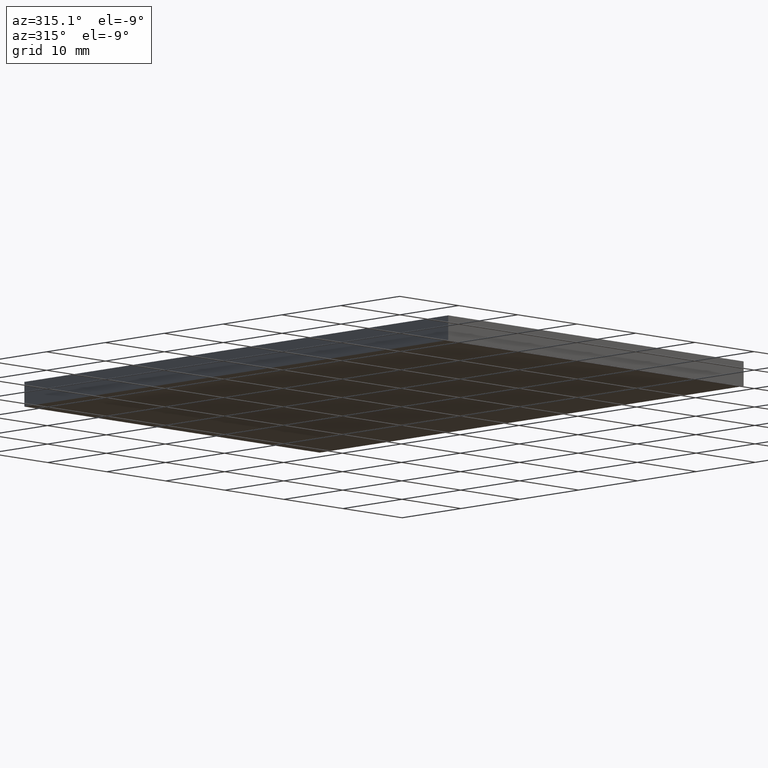
[diagram: clean part render]
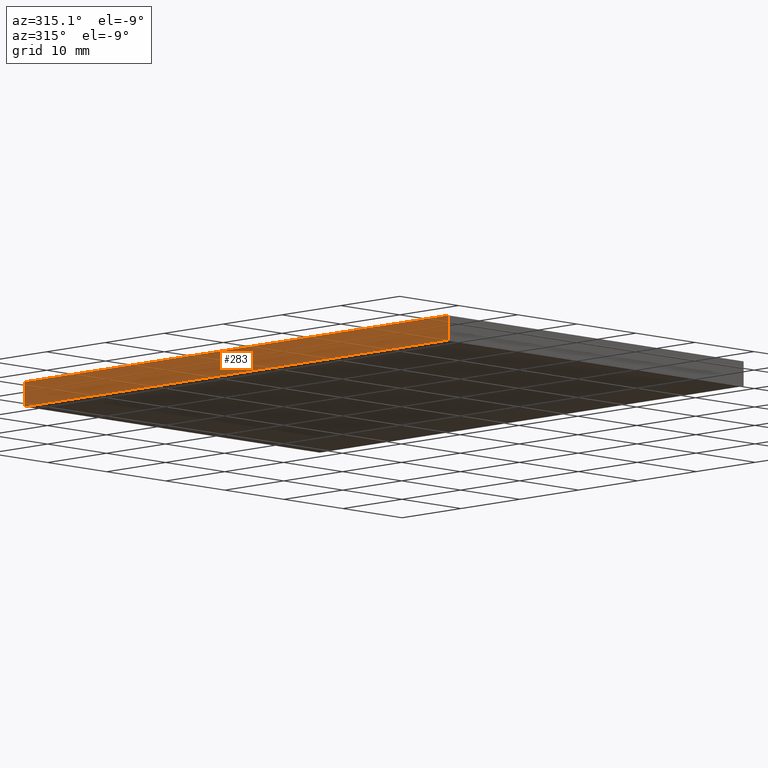
[diagram: same view with one face highlighted and labeled with its STEP entity id]
A machine part, auxiliary view. The second image highlights one B-rep face of the part: STEP entity #283.
In plain terms, the highlighted planar face has unit normal (1, 0, -0).
Its self-contained STEP definition (entity closure, byte-faithful):
#1 = CARTESIAN_POINT ( 'NONE',  ( -6.351626016260153700, -64.47967479674797200, 3.000000000000000000 ) ) ;
#18 = CARTESIAN_POINT ( 'NONE',  ( -6.351626016260162500, 7.520325203252024700, 3.000000000000000000 ) ) ;
#20 = VECTOR ( 'NONE', #134, 1000.000000000000000 ) ;
#40 = EDGE_CURVE ( 'NONE', #138, #247, #291, .T. ) ;
#61 = VECTOR ( 'NONE', #304, 1000.000000000000000 ) ;
#80 = DIRECTION ( 'NONE',  ( 1.000000000000000000, 1.204669080539449300E-016, -0.0000000000000000000 ) ) ;
#86 = LINE ( 'NONE', #269, #20 ) ;
#95 = CARTESIAN_POINT ( 'NONE',  ( -6.351626016260153700, -64.47967479674797200, 0.0000000000000000000 ) ) ;
#96 = DIRECTION ( 'NONE',  ( 1.204669080539449300E-016, -1.000000000000000000, 0.0000000000000000000 ) ) ;
#100 = FACE_OUTER_BOUND ( 'NONE', #173, .T. ) ;
#104 = CARTESIAN_POINT ( 'NONE',  ( -6.351626016260162500, 7.520325203252024700, 3.000000000000000000 ) ) ;
#116 = LINE ( 'NONE', #298, #61 ) ;
#134 = DIRECTION ( 'NONE',  ( -0.0000000000000000000, -0.0000000000000000000, -1.000000000000000000 ) ) ;
#138 = VERTEX_POINT ( 'NONE', #259 ) ;
#148 = DIRECTION ( 'NONE',  ( -0.0000000000000000000, -0.0000000000000000000, -1.000000000000000000 ) ) ;
#156 = VECTOR ( 'NONE', #148, 1000.000000000000000 ) ;
#166 = VERTEX_POINT ( 'NONE', #1 ) ;
#173 = EDGE_LOOP ( 'NONE', ( #201, #182, #272, #175 ) ) ;
#175 = ORIENTED_EDGE ( 'NONE', *, *, #275, .T. ) ;
#182 = ORIENTED_EDGE ( 'NONE', *, *, #187, .F. ) ;
#187 = EDGE_CURVE ( 'NONE', #166, #247, #243, .T. ) ;
#201 = ORIENTED_EDGE ( 'NONE', *, *, #40, .T. ) ;
#212 = VERTEX_POINT ( 'NONE', #18 ) ;
#221 = PLANE ( 'NONE',  #270 ) ;
#238 = CARTESIAN_POINT ( 'NONE',  ( -6.351626016260162500, 7.520325203252024700, 0.0000000000000000000 ) ) ;
#243 = LINE ( 'NONE', #294, #156 ) ;
#247 = VERTEX_POINT ( 'NONE', #95 ) ;
#249 = EDGE_CURVE ( 'NONE', #212, #166, #116, .T. ) ;
#253 = VECTOR ( 'NONE', #96, 1000.000000000000000 ) ;
#259 = CARTESIAN_POINT ( 'NONE',  ( -6.351626016260162500, 7.520325203252024700, 0.0000000000000000000 ) ) ;
#269 = CARTESIAN_POINT ( 'NONE',  ( -6.351626016260162500, 7.520325203252024700, 3.000000000000000000 ) ) ;
#270 = AXIS2_PLACEMENT_3D ( 'NONE', #104, #80, #273 ) ;
#272 = ORIENTED_EDGE ( 'NONE', *, *, #249, .F. ) ;
#273 = DIRECTION ( 'NONE',  ( -1.204669080539449300E-016, 1.000000000000000000, 0.0000000000000000000 ) ) ;
#275 = EDGE_CURVE ( 'NONE', #212, #138, #86, .T. ) ;
#283 = ADVANCED_FACE ( 'NONE', ( #100 ), #221, .F. ) ;
#291 = LINE ( 'NONE', #238, #253 ) ;
#294 = CARTESIAN_POINT ( 'NONE',  ( -6.351626016260153700, -64.47967479674797200, 3.000000000000000000 ) ) ;
#298 = CARTESIAN_POINT ( 'NONE',  ( -6.351626016260162500, 7.520325203252024700, 3.000000000000000000 ) ) ;
#304 = DIRECTION ( 'NONE',  ( 1.204669080539449300E-016, -1.000000000000000000, 0.0000000000000000000 ) ) ;